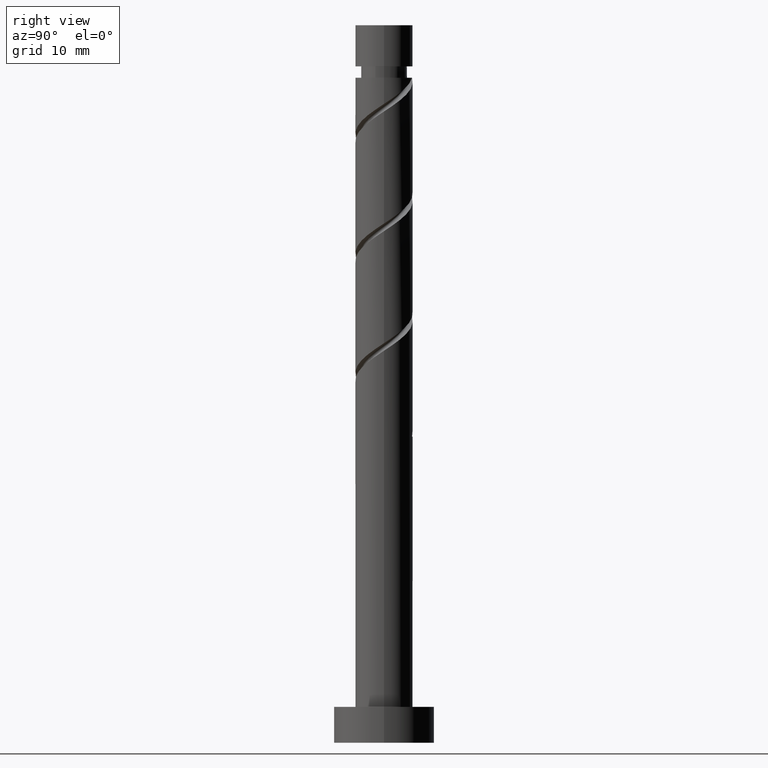
[diagram: clean part render]
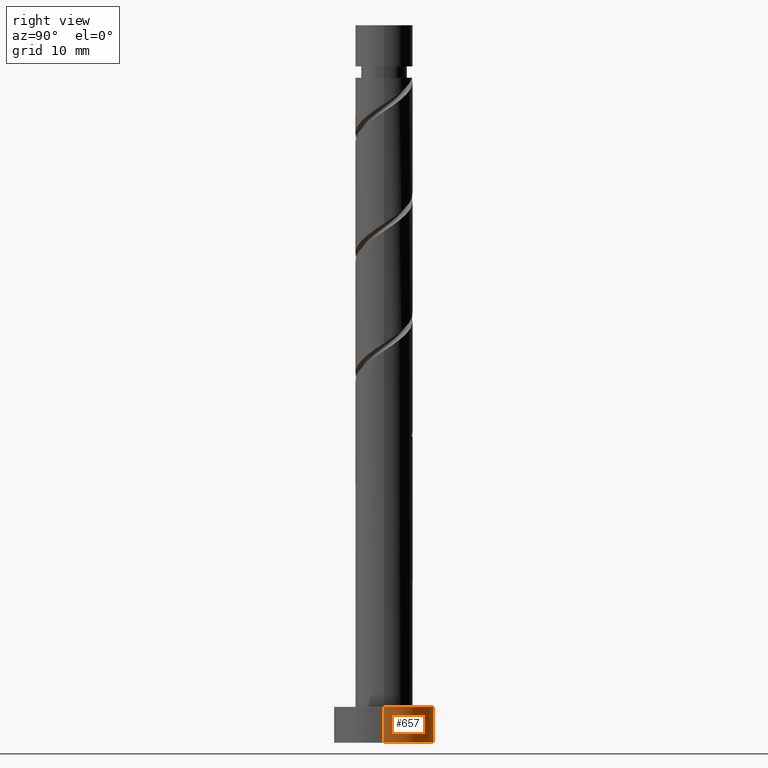
[diagram: same view with one face highlighted and labeled with its STEP entity id]
A machine part, right view. The second image highlights one B-rep face of the part: STEP entity #657.
In plain terms, the highlighted cylindrical surface (partial cylindrical patch) has radius 7 mm, axis along (-0, -0, -1).
Its self-contained STEP definition (entity closure, byte-faithful):
#33 = VERTEX_POINT ( 'NONE', #288 ) ;
#49 = DIRECTION ( 'NONE',  ( -0.000000000000000000, -0.000000000000000000, -1.000000000000000000 ) ) ;
#97 = VERTEX_POINT ( 'NONE', #304 ) ;
#125 = DIRECTION ( 'NONE',  ( 0.000000000000000000, 0.000000000000000000, 1.000000000000000000 ) ) ;
#149 = CARTESIAN_POINT ( 'NONE',  ( -7.000000000000000000, 0.000000000000000000, 0.000000000000000000 ) ) ;
#194 = LINE ( 'NONE', #872, #930 ) ;
#204 = CARTESIAN_POINT ( 'NONE',  ( 0.000000000000000000, 0.000000000000000000, 5.000000000000000000 ) ) ;
#251 = CARTESIAN_POINT ( 'NONE',  ( -7.000000000000000000, 0.000000000000000000, 5.000000000000000000 ) ) ;
#276 = CYLINDRICAL_SURFACE ( 'NONE', #1470, 7.000000000000000000 ) ;
#288 = CARTESIAN_POINT ( 'NONE',  ( 7.000000000000000000, 8.572527594031473190E-16, 0.000000000000000000 ) ) ;
#304 = CARTESIAN_POINT ( 'NONE',  ( -7.000000000000000000, 0.000000000000000000, 5.000000000000000000 ) ) ;
#337 = DIRECTION ( 'NONE',  ( 1.000000000000000000, 0.000000000000000000, 0.000000000000000000 ) ) ;
#440 = ORIENTED_EDGE ( 'NONE', *, *, #1451, .F. ) ;
#569 = ORIENTED_EDGE ( 'NONE', *, *, #742, .T. ) ;
#571 = AXIS2_PLACEMENT_3D ( 'NONE', #1452, #750, #1226 ) ;
#588 = EDGE_CURVE ( 'NONE', #1443, #33, #194, .T. ) ;
#657 = ADVANCED_FACE ( 'NONE', ( #1005 ), #276, .T. ) ;
#685 = LINE ( 'NONE', #251, #1045 ) ;
#734 = CIRCLE ( 'NONE', #1378, 7.000000000000000000 ) ;
#742 = EDGE_CURVE ( 'NONE', #33, #970, #1279, .T. ) ;
#750 = DIRECTION ( 'NONE',  ( 0.000000000000000000, 0.000000000000000000, 1.000000000000000000 ) ) ;
#791 = ORIENTED_EDGE ( 'NONE', *, *, #1425, .F. ) ;
#793 = CARTESIAN_POINT ( 'NONE',  ( 0.000000000000000000, 0.000000000000000000, 5.000000000000000000 ) ) ;
#872 = CARTESIAN_POINT ( 'NONE',  ( 7.000000000000000000, 8.572527594031473190E-16, 5.000000000000000000 ) ) ;
#930 = VECTOR ( 'NONE', #49, 1000.000000000000000 ) ;
#970 = VERTEX_POINT ( 'NONE', #149 ) ;
#1005 = FACE_OUTER_BOUND ( 'NONE', #1228, .T. ) ;
#1040 = DIRECTION ( 'NONE',  ( -0.000000000000000000, -0.000000000000000000, -1.000000000000000000 ) ) ;
#1045 = VECTOR ( 'NONE', #1156, 1000.000000000000000 ) ;
#1050 = ORIENTED_EDGE ( 'NONE', *, *, #588, .T. ) ;
#1060 = CARTESIAN_POINT ( 'NONE',  ( 7.000000000000000000, 8.572527594031473190E-16, 5.000000000000000000 ) ) ;
#1156 = DIRECTION ( 'NONE',  ( -0.000000000000000000, -0.000000000000000000, -1.000000000000000000 ) ) ;
#1226 = DIRECTION ( 'NONE',  ( 1.000000000000000000, 0.000000000000000000, 0.000000000000000000 ) ) ;
#1228 = EDGE_LOOP ( 'NONE', ( #791, #1050, #569, #440 ) ) ;
#1275 = DIRECTION ( 'NONE',  ( -1.000000000000000000, 0.000000000000000000, 0.000000000000000000 ) ) ;
#1279 = CIRCLE ( 'NONE', #571, 7.000000000000000000 ) ;
#1378 = AXIS2_PLACEMENT_3D ( 'NONE', #793, #125, #337 ) ;
#1425 = EDGE_CURVE ( 'NONE', #1443, #97, #734, .T. ) ;
#1443 = VERTEX_POINT ( 'NONE', #1060 ) ;
#1451 = EDGE_CURVE ( 'NONE', #97, #970, #685, .T. ) ;
#1452 = CARTESIAN_POINT ( 'NONE',  ( 0.000000000000000000, 0.000000000000000000, 0.000000000000000000 ) ) ;
#1470 = AXIS2_PLACEMENT_3D ( 'NONE', #204, #1040, #1275 ) ;